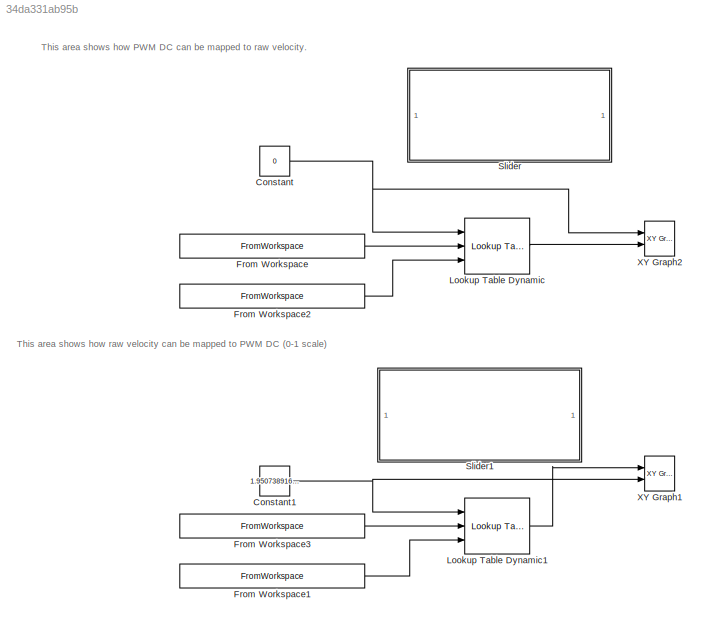
MODEL slx_34da331ab95b
KIND model
CONFIG AbsTol = auto
CONFIG FixedStep = 0.001
CONFIG MaxStep = auto
CONFIG MinStep = auto
CONFIG RelTol = 1e-3
CONFIG SampleTimeConstraint = Unconstrained
CONFIG Solver = ode5
CONFIG SolverMode = Auto
CONFIG SolverName = ode5
CONFIG StartTime = 0.0
CONFIG StopTime = inf
BLOCK [Constant] Constant
  Value = 0
BLOCK [Constant] Constant1
  Value = 1.950738916256157
BLOCK [FromWorkspace] From Workspace
  SampleTime = 0
  VariableName = robot.J1qdr2PWMmap(:,1)'
  ZeroCross = on
BLOCK [FromWorkspace] From Workspace1
  SampleTime = 0
  VariableName = robot.J4qdr2PWMmap(:,1)'
  ZeroCross = on
BLOCK [FromWorkspace] From Workspace2
  SampleTime = 0
  VariableName = robot.J1qdr2PWMmap(:,2)'
  ZeroCross = on
BLOCK [FromWorkspace] From Workspace3
  SampleTime = 0
  VariableName = robot.J4qdr2PWMmap(:,2)'
  ZeroCross = on
BLOCK [Reference] Lookup Table Dynamic  REF=simulink/Lookup
Tables/Lookup
Table
Dynamic
  Ports = [3, 1]
  SourceBlock = simulink/Lookup\nTables/Lookup\nTable\nDynamic
  SourceType = Lookup Table Dynamic
BLOCK [Reference] Lookup Table Dynamic1  REF=simulink/Lookup
Tables/Lookup
Table
Dynamic
  Ports = [3, 1]
  SourceBlock = simulink/Lookup\nTables/Lookup\nTable\nDynamic
  SourceType = Lookup Table Dynamic
BLOCK [SubSystem] Slider
  DialogController = hmiCreateDDGDialog
  IsWebBlock = on
  MaskHideContents = on
  Ports = []
  RequestExecContextInheritance = off
  Variant = off
BLOCK [SubSystem] Slider1
  DialogController = hmiCreateDDGDialog
  IsWebBlock = on
  MaskHideContents = on
  Ports = []
  RequestExecContextInheritance = off
  Variant = off
BLOCK [Reference] XY Graph1  REF=simulink/Sinks/XY Graph
  Ports = [2]
  SourceBlock = simulink/Sinks/XY Graph
  SourceType = XY scope.
BLOCK [Reference] XY Graph2  REF=simulink/Sinks/XY Graph
  Commented = on
  Ports = [2]
  SourceBlock = simulink/Sinks/XY Graph
  SourceType = XY scope.
ANNOTATION (root): This area shows how PWM DC can be mapped to raw velocity.
ANNOTATION (root): This area shows how raw velocity can be mapped to PWM DC (0-1 scale)
NET Constant1:1 -> Lookup Table Dynamic1:1, XY Graph1:2
NET Constant:1 -> Lookup Table Dynamic:1, XY Graph2:1
LINE From Workspace1:1 -> Lookup Table Dynamic1:3
LINE From Workspace2:1 -> Lookup Table Dynamic:3
LINE From Workspace3:1 -> Lookup Table Dynamic1:2
LINE From Workspace:1 -> Lookup Table Dynamic:2
LINE Lookup Table Dynamic1:1 -> XY Graph1:1
LINE Lookup Table Dynamic:1 -> XY Graph2:2
note: NET lines group one-source signal fan-out (src -> all destinations, sorted); 1:1 wires keep LINE
